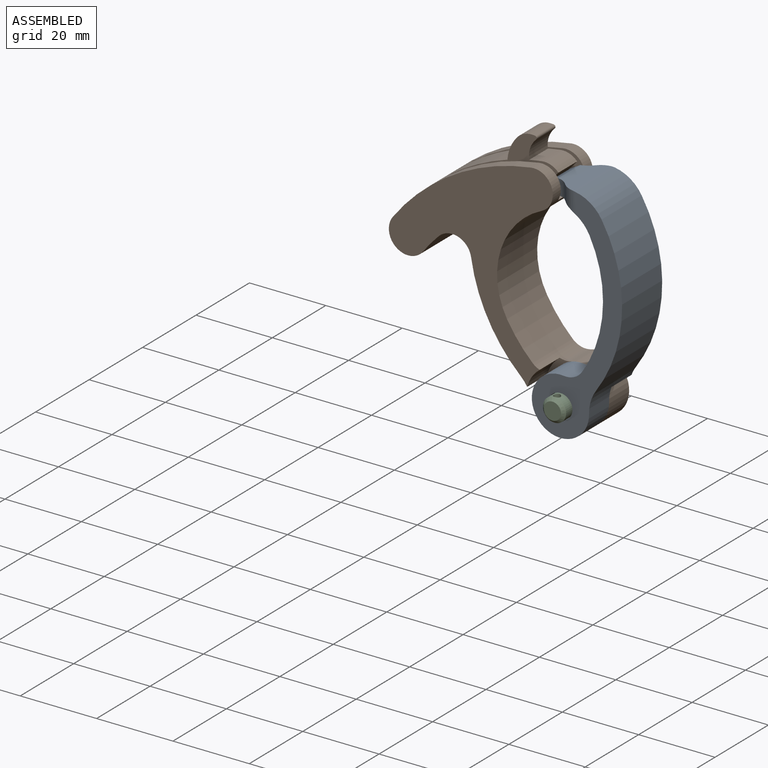
[diagram: assembled view]
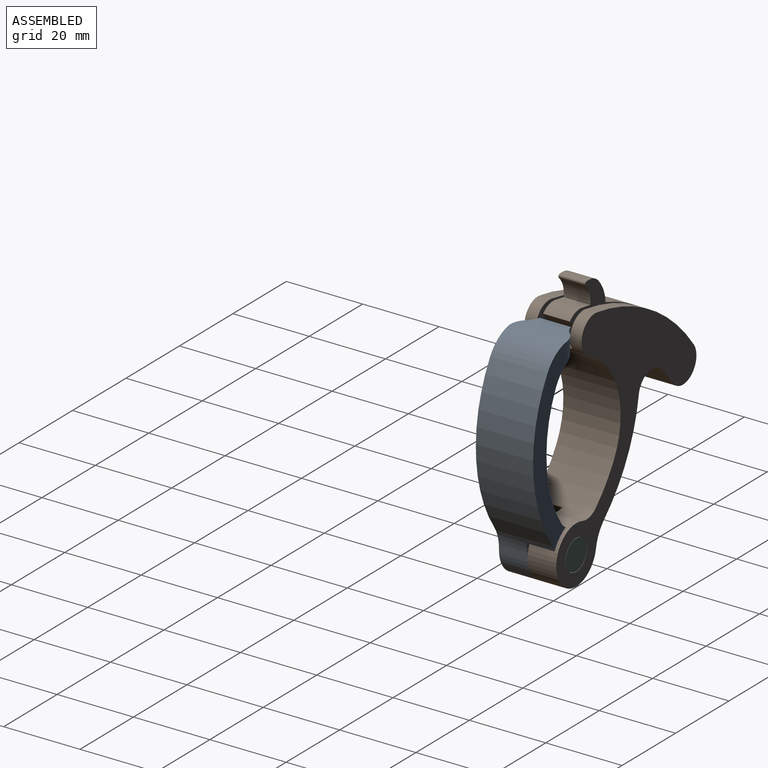
[diagram: assembled view, second angle]
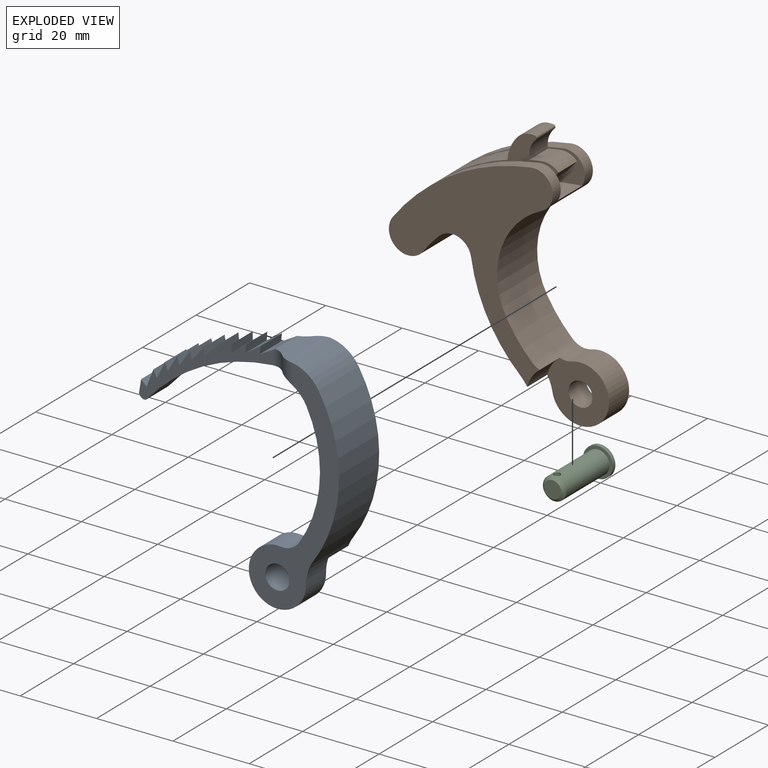
[diagram: exploded view]
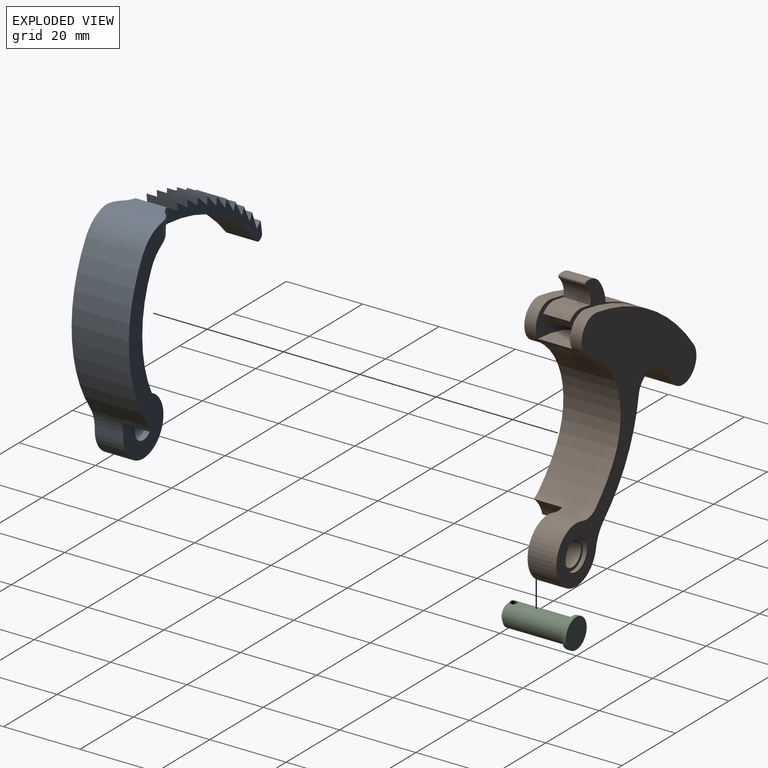
[diagram: exploded view, second angle]
ASSEMBLY  parts=3 mates=4
PART A: 46 faces, bbox 53.8x15x58.8 mm
  f0: plane 16.5x15mm, normal (0,1,0), area 156.5mm2, adj f9,f13,f17,f18,f45
  f1: plane 35.83x21.97mm, normal (0,1,0), area 118mm2, adj f3,f4,f5,f6,f7,f19,f20,f21
  f2: cylinder r=52mm len=14.77mm, axis (0,-1,0), area 64.7mm2, adj f14,f28,f39,f40,f41,f42,f43,f44
  f3: plane 8x2.94mm, normal (-0.41,0,0.91), area 25.7mm2, adj f1,f6,f16,f37
  f4: plane 8x0.43mm, normal (-0.99,0,0.1), area 3.5mm2, adj f1,f6,f7,f16
  f5: cylinder r=48mm len=33.29mm, axis (0,-1,0), area 320.4mm2, adj f1,f7,f15,f16,f43,f44
  f6: cylinder r=1mm len=8mm, axis (0,-1,0), area 8.4mm2, adj f1,f3,f4,f16
  f7: cylinder r=1mm len=8mm, axis (0,-1,0), area 12.4mm2, adj f1,f4,f5,f16
  f8: plane 38.62x29.86mm, normal (0,1,0), area 242.2mm2, adj f11,f12,f13,f14,f15,f17,f18,f41
  f9: cylinder r=7.5mm len=15mm, axis (0,1,0), area 273.1mm2, adj f0,f10,f17,f18
  f10: plane 53.81x32.69mm, normal (0,-1,0), area 398.7mm2, adj f9,f11,f12,f14,f15,f17,f18,f42
  f11: cylinder r=37.5mm len=35.07mm, axis (0,-1,0), area 650.4mm2, adj f8,f10,f14,f17
  f12: cylinder r=32.5mm len=28.61mm, axis (0,-1,0), area 518.5mm2, adj f8,f10,f15,f18
  f13: cylinder r=9mm len=7.5mm, axis (0,1,0), area 45.1mm2, adj f0,f8,f17,f18
  f14: cylinder r=10mm len=15mm, axis (0,-1,0), area 146.2mm2, adj f2,f8,f10,f11,f41,f42
  f15: cylinder r=10mm len=15mm, axis (0,1,0), area 156.9mm2, adj f5,f8,f10,f12,f39,f40,f41,f42
  f16: plane 35.83x21.97mm, normal (0,-1,0), area 118mm2, adj f3,f4,f5,f6,f7,f19,f20,f21
  f17: cylinder r=10mm len=15mm, axis (0,1,0), area 67mm2, adj f0,f8,f9,f10,f11,f13
  f18: cylinder r=5mm len=15mm, axis (0,-1,0), area 58.4mm2, adj f0,f8,f9,f10,f12,f13
  f19: plane 8x1.79mm, normal (0.87,0,-0.49), area 16.4mm2, adj f1,f16,f20,f38
  f20: plane 8x4.78mm, normal (-0.14,0,0.99), area 38.6mm2, adj f1,f16,f19,f35
  f21: plane 8x1.61mm, normal (0.79,0,-0.62), area 16.4mm2, adj f1,f16,f22,f36
  f22: plane 8x4.82mm, normal (0.02,0,1), area 38.6mm2, adj f1,f16,f21,f33
  f23: plane 8x1.5mm, normal (0.68,0,-0.73), area 16.4mm2, adj f1,f16,f24,f34
  f24: plane 8x4.76mm, normal (0.17,0,0.99), area 38.6mm2, adj f1,f16,f23,f31
  f25: plane 8x1.69mm, normal (0.57,0,-0.82), area 16.4mm2, adj f1,f16,f26,f32
  f26: plane 8x4.58mm, normal (0.31,0,0.95), area 38.6mm2, adj f1,f16,f25,f29
  f27: plane 8x1.85mm, normal (0.43,0,-0.9), area 16.4mm2, adj f1,f16,f28,f30
  f28: plane 8.18x4.3mm, normal (0.45,0,0.89), area 38.6mm2, adj f1,f2,f16,f27,f43,f44
  f29: plane 8x1.78mm, normal (0.5,0,-0.87), area 16.4mm2, adj f1,f16,f26,f30
  f30: plane 8x4.45mm, normal (0.38,0,0.92), area 38.6mm2, adj f1,f16,f27,f29
  f31: plane 8x1.6mm, normal (0.63,0,-0.78), area 16.4mm2, adj f1,f16,f24,f32
  f32: plane 8x4.68mm, normal (0.24,0,0.97), area 38.6mm2, adj f1,f16,f25,f31
  f33: plane 8x1.51mm, normal (0.74,0,-0.68), area 16.4mm2, adj f1,f16,f22,f34
  f34: plane 8x4.8mm, normal (0.09,0,1), area 38.6mm2, adj f1,f16,f23,f33
  f35: plane 8x1.7mm, normal (0.83,0,-0.56), area 16.4mm2, adj f1,f16,f20,f36
  f36: plane 8x4.81mm, normal (-0.06,0,1), area 38.6mm2, adj f1,f16,f21,f35
  f37: plane 8x1.97mm, normal (0.99,0,-0.17), area 16mm2, adj f1,f3,f16,f38
  f38: plane 8x4.77mm, normal (-0.21,0,0.98), area 39mm2, adj f1,f16,f19,f37
  f39: plane 3.66x2.88mm, normal (-0.41,-0.71,0.58), area 3.3mm2, adj f2,f15,f42,f44
  f40: plane 3.66x2.88mm, normal (-0.41,0.71,0.58), area 3.3mm2, adj f2,f15,f41,f43
  f41: cylinder r=5mm len=6.66mm, axis (-0.82,0,-0.58), area 18.1mm2, adj f2,f8,f14,f15,f40
  f42: cylinder r=5mm len=6.66mm, axis (-0.82,0,-0.58), area 18.1mm2, adj f2,f10,f14,f15,f39
  f43: cylinder r=5mm len=5.38mm, axis (-0.82,0,-0.58), area 15.6mm2, adj f1,f2,f5,f15,f28,f40
  f44: cylinder r=5mm len=5.38mm, axis (-0.82,0,-0.58), area 15.6mm2, adj f2,f5,f15,f16,f28,f39
  f45: cylinder r=3.15mm len=7.5mm, axis (0,-1,0), area 148.4mm2, adj f0,f10
PART B: 36 faces, bbox 52.5x15x67.6 mm
  f0: cylinder r=53mm len=37.75mm, axis (0,1,0), area 353.4mm2, adj f2,f3,f21,f22,f23,f24,f25,f30
  f1: cylinder r=55mm len=36.25mm, axis (0,1,0), area 531.6mm2, adj f2,f3,f5,f11,f12,f13,f21,f22
  f2: plane 1.64x1.15mm, normal (0.82,0,0.57), area 2mm2, adj f0,f1,f23,f24
  f3: plane 1.64x1.15mm, normal (0.82,0,0.57), area 2mm2, adj f0,f1,f21,f22
  f4: cylinder r=5mm len=7mm, axis (0,1,0), area 33.8mm2, adj f6,f22,f23,f29
  f5: cylinder r=5mm len=15mm, axis (0,1,0), area 112.5mm2, adj f1,f12,f13,f16,f20,f21,f24
  f6: cylinder r=55mm len=7mm, axis (0,1,0), area 23.4mm2, adj f4,f22,f23,f26
  f7: cylinder r=7.5mm len=15mm, axis (0,1,0), area 273.1mm2, adj f13,f15,f17,f19
  f8: cylinder r=45mm len=15mm, axis (0,1,0), area 93.5mm2, adj f11,f12,f13,f14
  f9: cylinder r=42.5mm len=24.62mm, axis (0,1,0), area 425.2mm2, adj f12,f13,f14,f17
  f10: cylinder r=37.5mm len=15mm, axis (0,1,0), area 164.6mm2, adj f12,f13,f15,f16
  f11: cylinder r=5mm len=15mm, axis (0,1,0), area 235.6mm2, adj f1,f8,f12,f13
  f12: plane 52.24x42.96mm, normal (0,-1,0), area 765.1mm2, adj f1,f5,f8,f9,f10,f11,f14,f15
  f13: plane 62.01x52.46mm, normal (0,1,0), area 902.4mm2, adj f1,f5,f7,f8,f9,f10,f11,f14
  f14: cylinder r=5mm len=15mm, axis (0,1,0), area 165.5mm2, adj f8,f9,f12,f13
  f15: cylinder r=5mm len=15mm, axis (0,1,0), area 56.5mm2, adj f7,f10,f12,f13,f18,f19
  f16: cylinder r=20mm len=28.05mm, axis (0,1,0), area 497.3mm2, adj f5,f10,f12,f13
  f17: cylinder r=10mm len=15mm, axis (0,-1,0), area 69.2mm2, adj f7,f9,f12,f13,f18,f19
  f18: cylinder r=9mm len=7.5mm, axis (0,-1,0), area 45mm2, adj f12,f15,f17,f19
  f19: plane 16.21x15mm, normal (0,-1,0), area 156.5mm2, adj f7,f15,f17,f18,f35
  f20: cylinder r=47mm len=35.78mm, axis (0,1,0), area 381.5mm2, adj f5,f21,f24,f25
  f21: plane 41.42x27.55mm, normal (0,-1,0), area 330.5mm2, adj f0,f1,f3,f5,f20,f25
  f22: plane 28.22x16.66mm, normal (0,1,0), area 91.4mm2, adj f0,f1,f3,f4,f6,f26,f27,f28
  f23: plane 28.22x16.66mm, normal (0,-1,0), area 91.4mm2, adj f0,f1,f2,f4,f6,f26,f27,f28
  f24: plane 41.42x27.55mm, normal (0,1,0), area 330.5mm2, adj f0,f1,f2,f5,f20,f25
  f25: plane 9x4.92mm, normal (0.57,0,0.82), area 54mm2, adj f0,f20,f21,f24
  f26: cylinder r=6mm len=7mm, axis (0,-1,0), area 40.6mm2, adj f6,f22,f23,f32
  f27: plane 7x0.63mm, normal (0.06,0,1), area 4.4mm2, adj f22,f23,f31,f32
  f28: cylinder r=10mm len=7mm, axis (0,-1,0), area 46.9mm2, adj f1,f22,f23,f31
  f29: plane 7x3mm, normal (0.75,0,-0.66), area 28.1mm2, adj f4,f22,f23,f30
  f30: plane 7x2.8mm, normal (-0.99,0,0.11), area 19.7mm2, adj f0,f22,f23,f29
  f31: cylinder r=5mm len=7mm, axis (0,-1,0), area 31.1mm2, adj f22,f23,f27,f28
  f32: cylinder r=0.5mm len=7mm, axis (0,-1,0), area 8.2mm2, adj f22,f23,f26,f27
  f33: cylinder r=4mm len=8mm, axis (0,1,0), area 25.1mm2, adj f13,f34
  f34: plane 8x8mm, normal (0,1,0), area 19.1mm2, adj f33,f35
  f35: cylinder r=3.15mm len=6.5mm, axis (0,-1,0), area 128.6mm2, adj f19,f34
PART C: 7 faces, bbox 7.8x7.8x18 mm
  f0: cylinder r=3.05mm len=16.2mm, axis (0,0,-1), area 305.4mm2, adj f3,f5,f6
  f1: plane 4.5x4.5mm, normal (0,0,1), area 15.9mm2, adj f6
  f2: cylinder r=3.9mm len=7.8mm, axis (0,0,-1), area 24.5mm2, adj f3,f4
  f3: plane 7.8x7.8mm, normal (0,0,1), area 18.6mm2, adj f0,f2
  f4: plane 7.8x7.8mm, normal (0,0,-1), area 47.8mm2, adj f2
  f5: cylinder r=0.89mm len=6.1mm, axis (0,-1,0), area 33.4mm2, adj f0
  f6: cone r=2.25mm half-angle=45deg, axis (0,0,-1), area 18.8mm2, adj f0,f1
PLACE A rot(axis=(0,-1,0),56.8deg) t=(0,0,0)mm
PLACE B at identity fixed
PLACE C rot(axis=(1,0,0),90deg) t=(0,0,0)mm
MATE planar C.f2 <-> B.f7  axis (0,-1,0) through (0,-1,0)mm
MATE planar B.f19 <-> A.f0  axis (0,-1,0) through (-0.46,-7.5,0.3)mm
MATE cylindrical C.f0 <-> B.f35  axis (0,1,0) through (0,-9.1,0)mm
MATE cylindrical B.f35 <-> A.f45  axis (0,-1,0) through (0,-4.25,0)mm
